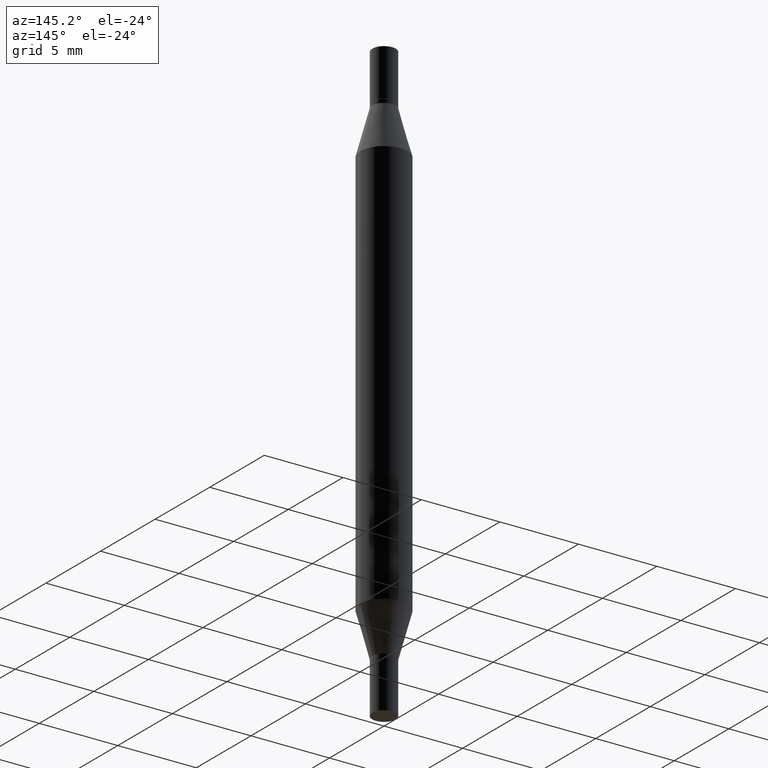
[diagram: clean part render]
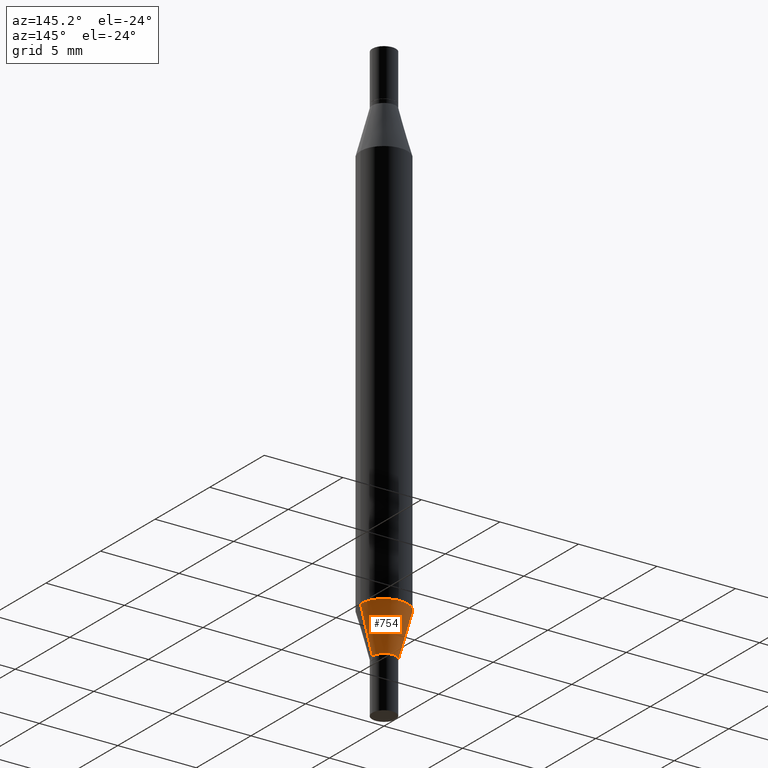
[diagram: same view with one face highlighted and labeled with its STEP entity id]
A machine part, auxiliary view. The second image highlights one B-rep face of the part: STEP entity #754.
In plain terms, the highlighted conical surface has half-angle 15 deg.
Its self-contained STEP definition (entity closure, byte-faithful):
#24 = CARTESIAN_POINT ( 'NONE',  ( -0.02954999999999991661, -4.583140203546760956E-15, -1.368099999999999872 ) ) ;
#58 = LINE ( 'NONE', #227, #202 ) ;
#63 = EDGE_CURVE ( 'NONE', #695, #903, #637, .T. ) ;
#147 = CONICAL_SURFACE ( 'NONE', #284, 0.02954999999999991661, 0.2617993877991506846 ) ;
#169 = CIRCLE ( 'NONE', #453, 0.05904999999999999832 ) ;
#173 = FACE_OUTER_BOUND ( 'NONE', #591, .T. ) ;
#191 = EDGE_CURVE ( 'NONE', #199, #882, #58, .T. ) ;
#199 = VERTEX_POINT ( 'NONE', #217 ) ;
#202 = VECTOR ( 'NONE', #736, 39.37007874015748143 ) ;
#214 = DIRECTION ( 'NONE',  ( -2.445468806185136597E-29, 3.491481338843145583E-15, 1.000000000000000000 ) ) ;
#217 = CARTESIAN_POINT ( 'NONE',  ( 0.02954999999999991661, -4.983042166796936213E-15, -1.368099999999999872 ) ) ;
#227 = CARTESIAN_POINT ( 'NONE',  ( 0.02954999999999991661, -4.983042166796936213E-15, -1.368099999999999872 ) ) ;
#240 = DIRECTION ( 'NONE',  ( 1.000000000000000000, -6.982962677686281699E-15, 0.000000000000000000 ) ) ;
#248 = CARTESIAN_POINT ( 'NONE',  ( 3.345645873741884627E-29, -4.776695619671307391E-15, -1.368099999999999872 ) ) ;
#284 = AXIS2_PLACEMENT_3D ( 'NONE', #769, #635, #240 ) ;
#304 = EDGE_CURVE ( 'NONE', #199, #695, #476, .T. ) ;
#379 = ORIENTED_EDGE ( 'NONE', *, *, #63, .T. ) ;
#412 = CARTESIAN_POINT ( 'NONE',  ( -0.02954999999999991661, -4.566730241254198034E-15, -1.368099999999999872 ) ) ;
#418 = ORIENTED_EDGE ( 'NONE', *, *, #913, .F. ) ;
#436 = DIRECTION ( 'NONE',  ( 1.000000000000000000, -6.982962677686273021E-15, 0.000000000000000000 ) ) ;
#449 = AXIS2_PLACEMENT_3D ( 'NONE', #248, #760, #614 ) ;
#453 = AXIS2_PLACEMENT_3D ( 'NONE', #647, #214, #436 ) ;
#476 = CIRCLE ( 'NONE', #449, 0.02954999999999991661 ) ;
#481 = DIRECTION ( 'NONE',  ( -0.2588190451025219607, 5.211531920934553408E-15, 0.9659258262890679791 ) ) ;
#591 = EDGE_LOOP ( 'NONE', ( #603, #379, #418, #828 ) ) ;
#603 = ORIENTED_EDGE ( 'NONE', *, *, #304, .T. ) ;
#614 = DIRECTION ( 'NONE',  ( 1.000000000000000000, -6.982962677686281699E-15, 0.000000000000000000 ) ) ;
#635 = DIRECTION ( 'NONE',  ( -2.445468806185136597E-29, 3.491481338843145583E-15, 1.000000000000000000 ) ) ;
#637 = LINE ( 'NONE', #412, #834 ) ;
#640 = CARTESIAN_POINT ( 'NONE',  ( 0.05904999999999999832, -4.804643186156566455E-15, -1.258004501176718248 ) ) ;
#647 = CARTESIAN_POINT ( 'NONE',  ( 3.076410765668157214E-29, -4.392299240039191535E-15, -1.258004501176718248 ) ) ;
#652 = CARTESIAN_POINT ( 'NONE',  ( -0.05904999999999999832, -2.206690208753205272E-15, -1.258004501176718248 ) ) ;
#695 = VERTEX_POINT ( 'NONE', #24 ) ;
#736 = DIRECTION ( 'NONE',  ( 0.2588190451025219607, 1.565188264969617432E-15, 0.9659258262890679791 ) ) ;
#754 = ADVANCED_FACE ( 'NONE', ( #173 ), #147, .T. ) ;
#760 = DIRECTION ( 'NONE',  ( -2.445468806185136597E-29, 3.491481338843145583E-15, 1.000000000000000000 ) ) ;
#769 = CARTESIAN_POINT ( 'NONE',  ( 3.345645873741884627E-29, -4.776695619671307391E-15, -1.368099999999999872 ) ) ;
#828 = ORIENTED_EDGE ( 'NONE', *, *, #191, .F. ) ;
#834 = VECTOR ( 'NONE', #481, 39.37007874015748143 ) ;
#882 = VERTEX_POINT ( 'NONE', #640 ) ;
#903 = VERTEX_POINT ( 'NONE', #652 ) ;
#913 = EDGE_CURVE ( 'NONE', #882, #903, #169, .T. ) ;